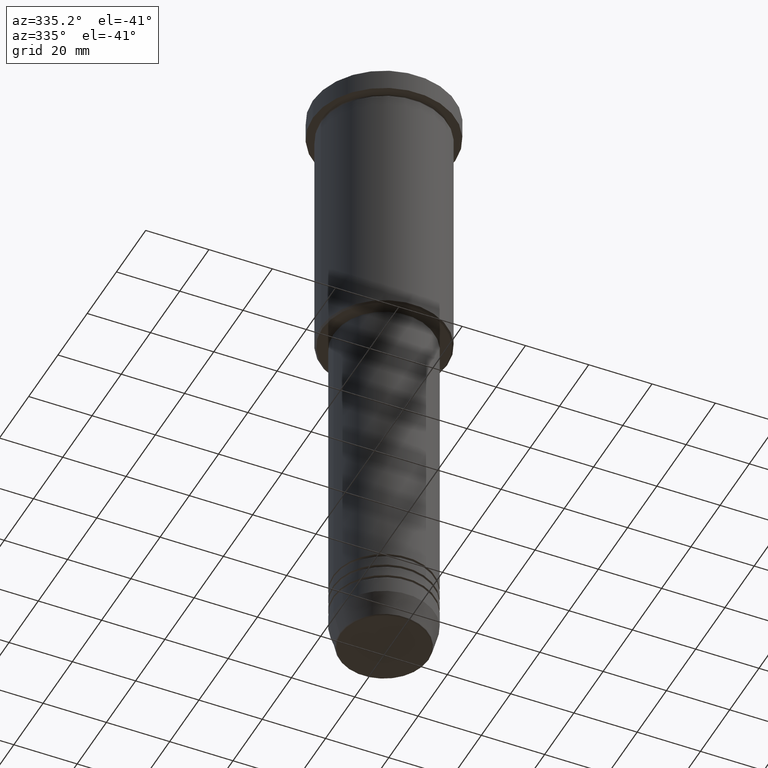
[diagram: clean part render]
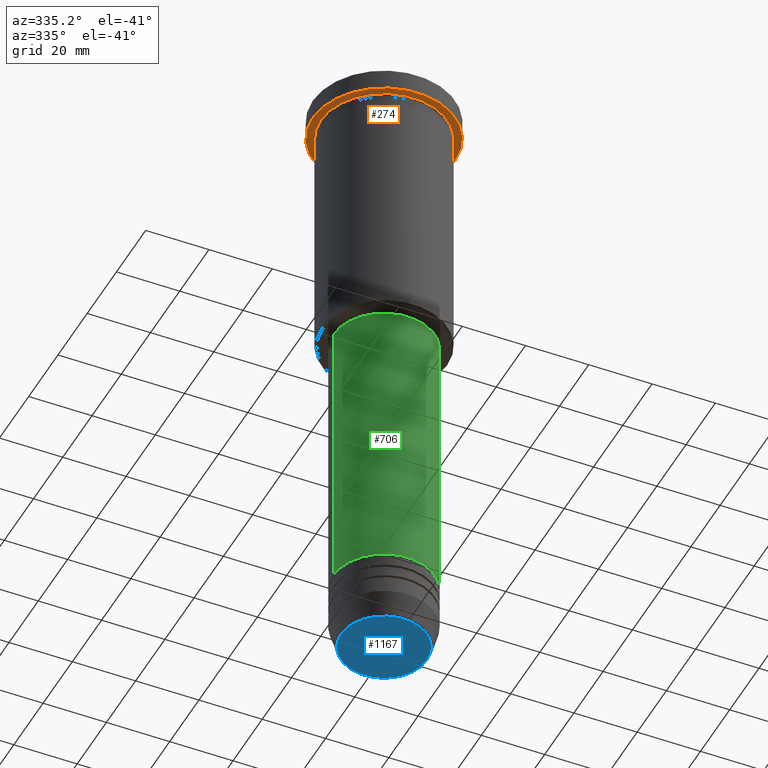
[diagram: same view with three faces highlighted in distinct colors, each labeled with its STEP entity id]
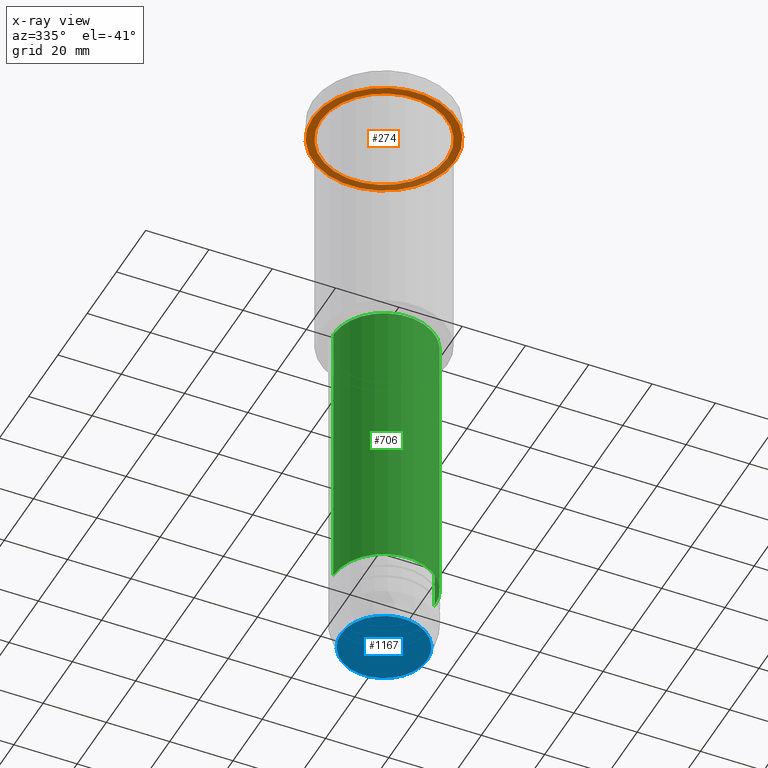
[diagram: x-ray of the same camera — body ghosted, the three highlighted faces saturated]
A machine part, auxiliary view with three faces highlighted in distinct colors.
The next image is the same camera in x-ray (body ghosted, the three faces saturated) — at least one of them is partly hidden behind the body in this view.
Their STEP definitions:

[orange] entity #274 — the highlighted planar face has unit normal (0, 0, -1).
#3 = DIRECTION ( 'NONE',  ( -1.000000000000000000, 0.000000000000000000, -0.000000000000000000 ) ) ;
#87 = AXIS2_PLACEMENT_3D ( 'NONE', #456, #366, #545 ) ;
#98 = CARTESIAN_POINT ( 'NONE',  ( 20.00000000000000000, 2.449293598294706513E-15, -6.999999999999995559 ) ) ;
#105 = CIRCLE ( 'NONE', #265, 20.00000000000000000 ) ;
#137 = DIRECTION ( 'NONE',  ( -1.000000000000000000, 0.000000000000000000, 0.000000000000000000 ) ) ;
#143 = ORIENTED_EDGE ( 'NONE', *, *, #702, .T. ) ;
#161 = VERTEX_POINT ( 'NONE', #98 ) ;
#170 = PLANE ( 'NONE',  #891 ) ;
#216 = DIRECTION ( 'NONE',  ( -1.000000000000000000, 0.000000000000000000, 0.000000000000000000 ) ) ;
#265 = AXIS2_PLACEMENT_3D ( 'NONE', #583, #782, #137 ) ;
#267 = CARTESIAN_POINT ( 'NONE',  ( 22.50000000000000000, 0.000000000000000000, -6.999999999999995559 ) ) ;
#270 = FACE_OUTER_BOUND ( 'NONE', #892, .T. ) ;
#274 = ADVANCED_FACE ( 'NONE', ( #527, #270 ), #170, .T. ) ;
#283 = VERTEX_POINT ( 'NONE', #639 ) ;
#366 = DIRECTION ( 'NONE',  ( -0.000000000000000000, -0.000000000000000000, 1.000000000000000000 ) ) ;
#367 = VERTEX_POINT ( 'NONE', #267 ) ;
#456 = CARTESIAN_POINT ( 'NONE',  ( 0.000000000000000000, 0.000000000000000000, -6.999999999999995559 ) ) ;
#527 = FACE_BOUND ( 'NONE', #1093, .T. ) ;
#545 = DIRECTION ( 'NONE',  ( 1.000000000000000000, 0.000000000000000000, 0.000000000000000000 ) ) ;
#573 = AXIS2_PLACEMENT_3D ( 'NONE', #856, #781, #216 ) ;
#583 = CARTESIAN_POINT ( 'NONE',  ( 0.000000000000000000, 0.000000000000000000, -6.999999999999995559 ) ) ;
#639 = CARTESIAN_POINT ( 'NONE',  ( -20.00000000000000000, 0.000000000000000000, -6.999999999999995559 ) ) ;
#650 = CIRCLE ( 'NONE', #573, 20.00000000000000000 ) ;
#702 = EDGE_CURVE ( 'NONE', #283, #161, #105, .T. ) ;
#781 = DIRECTION ( 'NONE',  ( -0.000000000000000000, -0.000000000000000000, 1.000000000000000000 ) ) ;
#782 = DIRECTION ( 'NONE',  ( -0.000000000000000000, -0.000000000000000000, 1.000000000000000000 ) ) ;
#829 = DIRECTION ( 'NONE',  ( 0.000000000000000000, 0.000000000000000000, -1.000000000000000000 ) ) ;
#831 = EDGE_CURVE ( 'NONE', #907, #367, #1053, .T. ) ;
#849 = CARTESIAN_POINT ( 'NONE',  ( 0.000000000000000000, 0.000000000000000000, -6.999999999999995559 ) ) ;
#856 = CARTESIAN_POINT ( 'NONE',  ( 0.000000000000000000, 0.000000000000000000, -6.999999999999995559 ) ) ;
#863 = DIRECTION ( 'NONE',  ( 1.000000000000000000, 0.000000000000000000, 0.000000000000000000 ) ) ;
#869 = ORIENTED_EDGE ( 'NONE', *, *, #831, .F. ) ;
#891 = AXIS2_PLACEMENT_3D ( 'NONE', #1168, #829, #3 ) ;
#892 = EDGE_LOOP ( 'NONE', ( #1079, #869 ) ) ;
#907 = VERTEX_POINT ( 'NONE', #926 ) ;
#926 = CARTESIAN_POINT ( 'NONE',  ( -22.50000000000000000, 2.755455298081544778E-15, -6.999999999999995559 ) ) ;
#943 = CIRCLE ( 'NONE', #981, 22.50000000000000000 ) ;
#954 = ORIENTED_EDGE ( 'NONE', *, *, #1146, .T. ) ;
#981 = AXIS2_PLACEMENT_3D ( 'NONE', #849, #1034, #863 ) ;
#1034 = DIRECTION ( 'NONE',  ( -0.000000000000000000, -0.000000000000000000, 1.000000000000000000 ) ) ;
#1040 = EDGE_CURVE ( 'NONE', #367, #907, #943, .T. ) ;
#1053 = CIRCLE ( 'NONE', #87, 22.50000000000000000 ) ;
#1079 = ORIENTED_EDGE ( 'NONE', *, *, #1040, .F. ) ;
#1093 = EDGE_LOOP ( 'NONE', ( #143, #954 ) ) ;
#1146 = EDGE_CURVE ( 'NONE', #161, #283, #650, .T. ) ;
#1168 = CARTESIAN_POINT ( 'NONE',  ( 0.000000000000000000, 22.50000000000000000, -6.999999999999995559 ) ) ;

[blue] entity #1167 — the highlighted planar face has unit normal (0, -0, 1).
#53 = CARTESIAN_POINT ( 'NONE',  ( 0.000000000000000000, 0.000000000000000000, -200.0000000000000000 ) ) ;
#71 = AXIS2_PLACEMENT_3D ( 'NONE', #302, #662, #339 ) ;
#133 = DIRECTION ( 'NONE',  ( 1.000000000000000000, 0.000000000000000000, 0.000000000000000000 ) ) ;
#146 = CIRCLE ( 'NONE', #71, 13.60671756277710109 ) ;
#169 = EDGE_LOOP ( 'NONE', ( #233, #678 ) ) ;
#181 = CARTESIAN_POINT ( 'NONE',  ( -13.60671756277710109, 1.695915260300172047E-15, -200.0000000000000000 ) ) ;
#193 = EDGE_CURVE ( 'NONE', #382, #785, #146, .T. ) ;
#224 = DIRECTION ( 'NONE',  ( 1.000000000000000000, 0.000000000000000000, 0.000000000000000000 ) ) ;
#233 = ORIENTED_EDGE ( 'NONE', *, *, #193, .T. ) ;
#302 = CARTESIAN_POINT ( 'NONE',  ( 0.000000000000000000, 0.000000000000000000, -200.0000000000000000 ) ) ;
#311 = CARTESIAN_POINT ( 'NONE',  ( 0.000000000000000000, 0.000000000000000000, -200.0000000000000000 ) ) ;
#316 = FACE_OUTER_BOUND ( 'NONE', #169, .T. ) ;
#339 = DIRECTION ( 'NONE',  ( 1.000000000000000000, 0.000000000000000000, 0.000000000000000000 ) ) ;
#382 = VERTEX_POINT ( 'NONE', #765 ) ;
#477 = CIRCLE ( 'NONE', #1087, 13.60671756277710109 ) ;
#497 = DIRECTION ( 'NONE',  ( 0.000000000000000000, 0.000000000000000000, -1.000000000000000000 ) ) ;
#587 = AXIS2_PLACEMENT_3D ( 'NONE', #53, #1049, #224 ) ;
#662 = DIRECTION ( 'NONE',  ( 0.000000000000000000, 0.000000000000000000, -1.000000000000000000 ) ) ;
#678 = ORIENTED_EDGE ( 'NONE', *, *, #689, .T. ) ;
#686 = PLANE ( 'NONE',  #587 ) ;
#689 = EDGE_CURVE ( 'NONE', #785, #382, #477, .T. ) ;
#765 = CARTESIAN_POINT ( 'NONE',  ( 13.60671756277710109, 0.000000000000000000, -200.0000000000000000 ) ) ;
#785 = VERTEX_POINT ( 'NONE', #181 ) ;
#1049 = DIRECTION ( 'NONE',  ( 0.000000000000000000, -0.000000000000000000, 1.000000000000000000 ) ) ;
#1087 = AXIS2_PLACEMENT_3D ( 'NONE', #311, #497, #133 ) ;
#1167 = ADVANCED_FACE ( 'NONE', ( #316 ), #686, .F. ) ;

[green] entity #706 — the highlighted cylindrical surface (partial cylindrical patch) has radius 16 mm, axis along (-0, -0, 1).
#49 = FACE_OUTER_BOUND ( 'NONE', #927, .T. ) ;
#72 = DIRECTION ( 'NONE',  ( 1.000000000000000000, 0.000000000000000000, 0.000000000000000000 ) ) ;
#78 = CARTESIAN_POINT ( 'NONE',  ( 0.000000000000000000, 0.000000000000000000, -178.5000000000000284 ) ) ;
#175 = DIRECTION ( 'NONE',  ( -0.000000000000000000, -0.000000000000000000, 1.000000000000000000 ) ) ;
#195 = VERTEX_POINT ( 'NONE', #334 ) ;
#198 = EDGE_CURVE ( 'NONE', #280, #195, #987, .T. ) ;
#228 = DIRECTION ( 'NONE',  ( -0.000000000000000000, -0.000000000000000000, 1.000000000000000000 ) ) ;
#280 = VERTEX_POINT ( 'NONE', #660 ) ;
#289 = EDGE_CURVE ( 'NONE', #970, #1080, #1003, .T. ) ;
#290 = CARTESIAN_POINT ( 'NONE',  ( -16.00000000000000000, 1.959434878635765131E-15, 0.000000000000000000 ) ) ;
#296 = ORIENTED_EDGE ( 'NONE', *, *, #803, .F. ) ;
#303 = AXIS2_PLACEMENT_3D ( 'NONE', #611, #326, #331 ) ;
#324 = CARTESIAN_POINT ( 'NONE',  ( -16.00000000000000000, 1.959434878635765131E-15, -87.00000000000002842 ) ) ;
#326 = DIRECTION ( 'NONE',  ( -0.000000000000000000, -0.000000000000000000, 1.000000000000000000 ) ) ;
#331 = DIRECTION ( 'NONE',  ( 1.000000000000000000, 0.000000000000000000, 0.000000000000000000 ) ) ;
#334 = CARTESIAN_POINT ( 'NONE',  ( 16.00000000000000000, 0.000000000000000000, -87.00000000000002842 ) ) ;
#482 = CARTESIAN_POINT ( 'NONE',  ( -16.00000000000000000, 1.959434878635765131E-15, -178.5000000000000284 ) ) ;
#498 = ORIENTED_EDGE ( 'NONE', *, *, #289, .F. ) ;
#520 = CARTESIAN_POINT ( 'NONE',  ( 16.00000000000000000, 0.000000000000000000, 0.000000000000000000 ) ) ;
#550 = DIRECTION ( 'NONE',  ( -0.000000000000000000, -0.000000000000000000, 1.000000000000000000 ) ) ;
#611 = CARTESIAN_POINT ( 'NONE',  ( 0.000000000000000000, 0.000000000000000000, 0.000000000000000000 ) ) ;
#637 = CARTESIAN_POINT ( 'NONE',  ( 0.000000000000000000, 0.000000000000000000, -87.00000000000002842 ) ) ;
#660 = CARTESIAN_POINT ( 'NONE',  ( 16.00000000000000000, 0.000000000000000000, -178.5000000000000284 ) ) ;
#672 = AXIS2_PLACEMENT_3D ( 'NONE', #78, #550, #1153 ) ;
#676 = ORIENTED_EDGE ( 'NONE', *, *, #198, .T. ) ;
#706 = ADVANCED_FACE ( 'NONE', ( #49 ), #1139, .T. ) ;
#735 = DIRECTION ( 'NONE',  ( -0.000000000000000000, -0.000000000000000000, 1.000000000000000000 ) ) ;
#758 = EDGE_CURVE ( 'NONE', #970, #280, #1178, .T. ) ;
#790 = AXIS2_PLACEMENT_3D ( 'NONE', #637, #735, #72 ) ;
#803 = EDGE_CURVE ( 'NONE', #1080, #195, #1014, .T. ) ;
#817 = VECTOR ( 'NONE', #228, 1000.000000000000000 ) ;
#927 = EDGE_LOOP ( 'NONE', ( #498, #1163, #676, #296 ) ) ;
#970 = VERTEX_POINT ( 'NONE', #482 ) ;
#987 = LINE ( 'NONE', #520, #817 ) ;
#1003 = LINE ( 'NONE', #290, #1050 ) ;
#1014 = CIRCLE ( 'NONE', #790, 16.00000000000000000 ) ;
#1050 = VECTOR ( 'NONE', #175, 1000.000000000000000 ) ;
#1080 = VERTEX_POINT ( 'NONE', #324 ) ;
#1139 = CYLINDRICAL_SURFACE ( 'NONE', #303, 16.00000000000000000 ) ;
#1153 = DIRECTION ( 'NONE',  ( 1.000000000000000000, 0.000000000000000000, 0.000000000000000000 ) ) ;
#1163 = ORIENTED_EDGE ( 'NONE', *, *, #758, .T. ) ;
#1178 = CIRCLE ( 'NONE', #672, 16.00000000000000000 ) ;